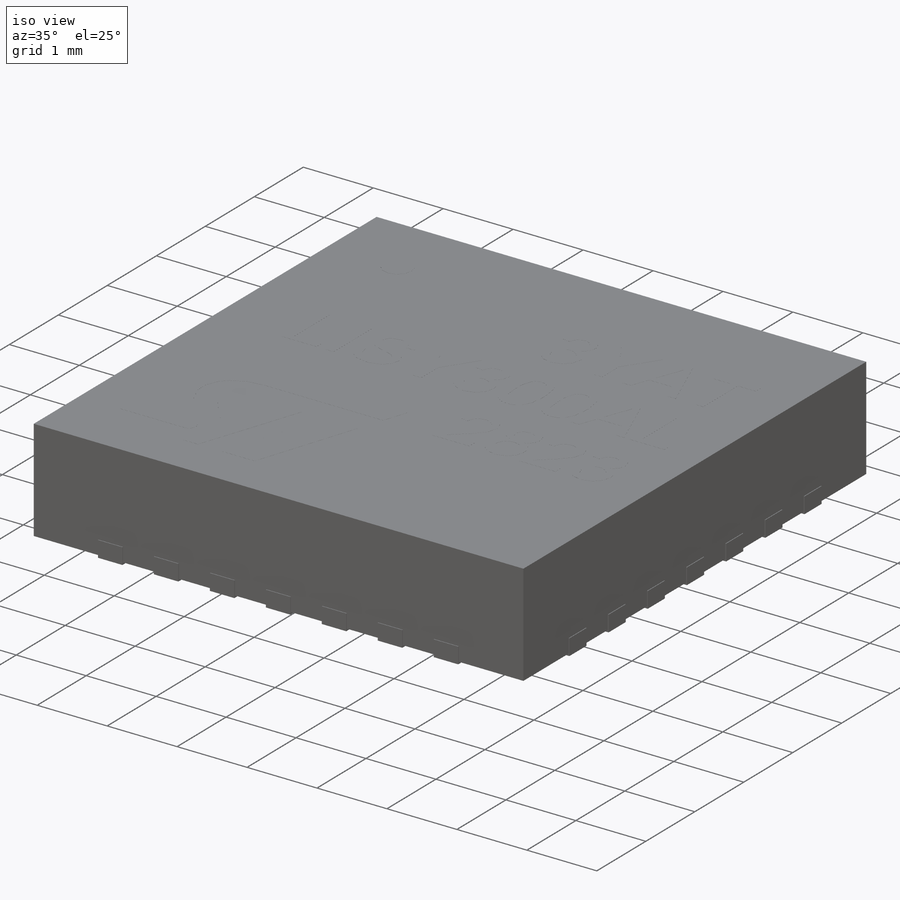
[diagram: iso view]
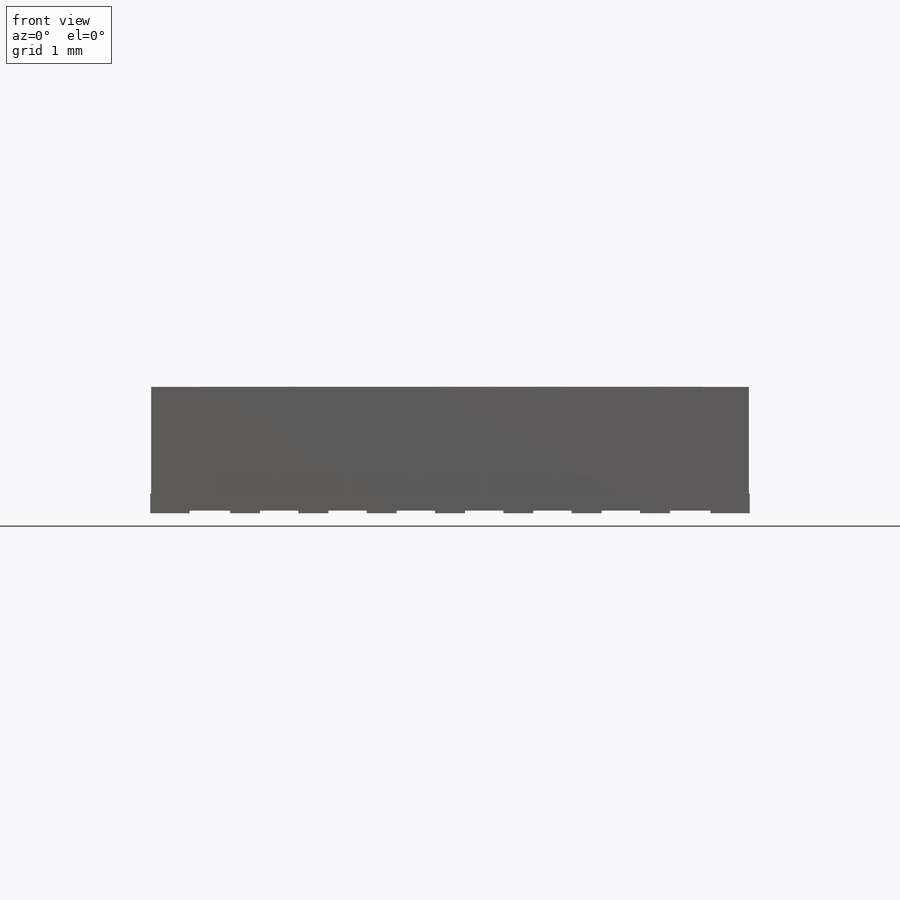
[diagram: front view]
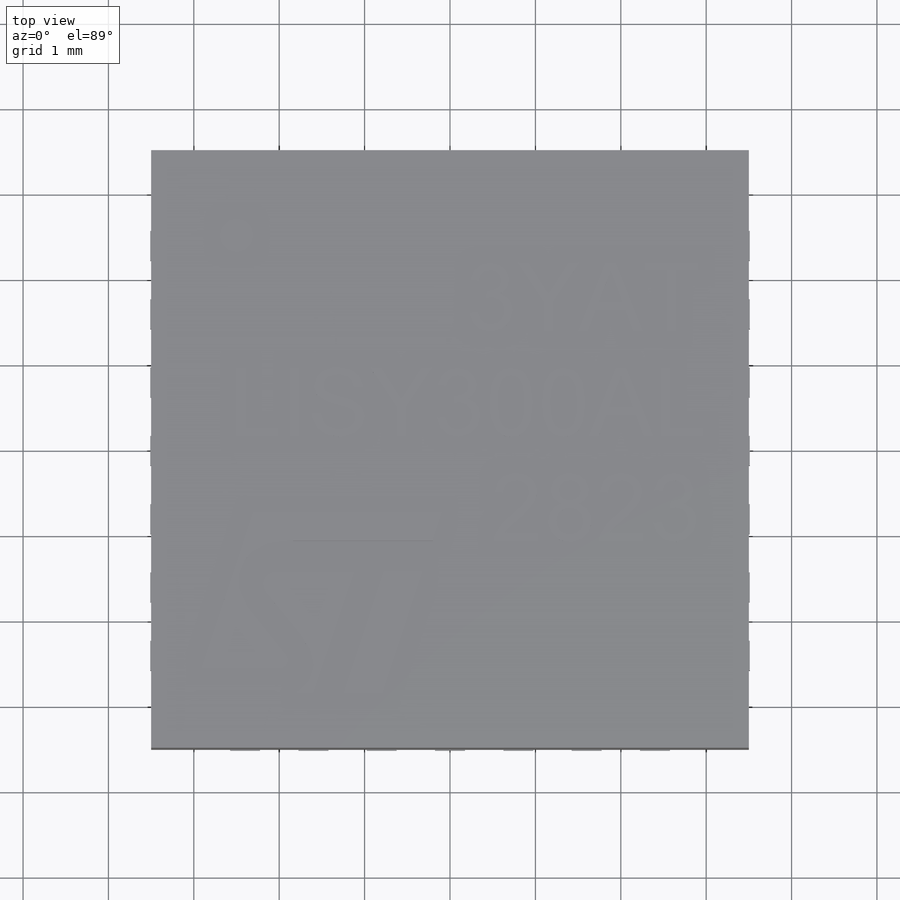
[diagram: top view]
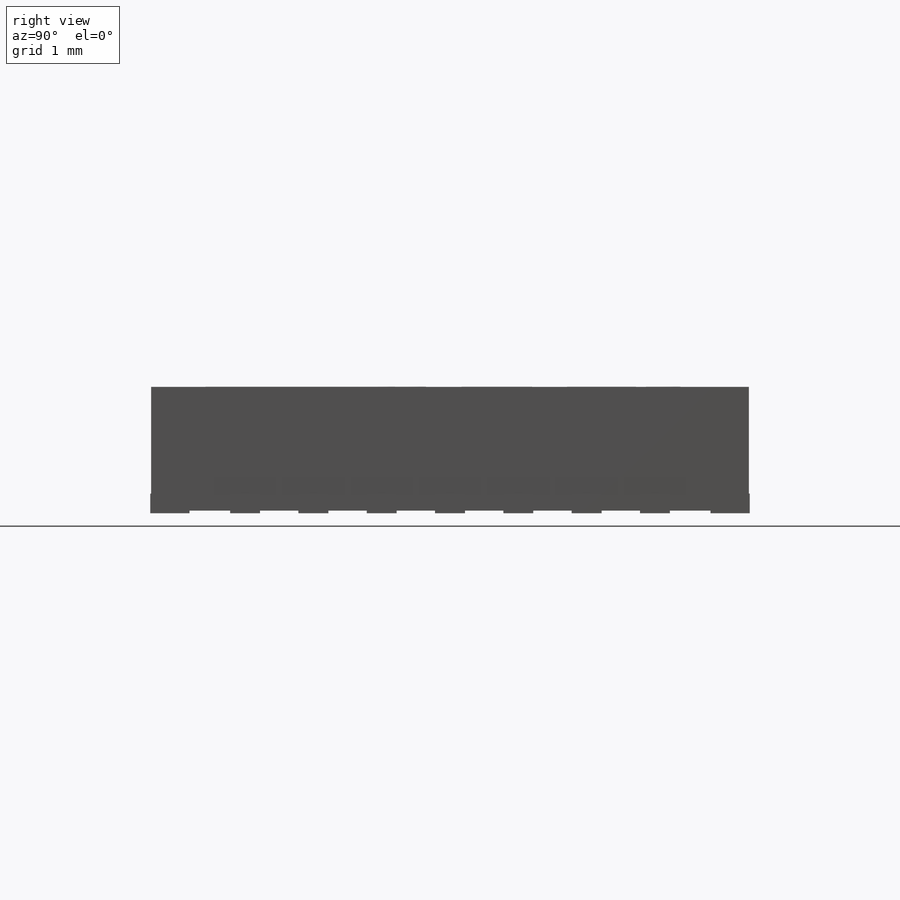
[diagram: right view]
SOLIDWORKS PART (.sldprt)
format: sldprt  version: not decoded by parser v0  size: 917,504 bytes
history: native  units: mm
features: plane x4, sketch x4, extrude x4, material x1 (+13 scaffold rows collapsed)
feature tree (26):
  scaffold x13  (default folders/planes/origin — collapsed)
  material  "ABS"
  plane  "Спереди"
  plane  "Сверху"
  plane  "Справа"
  plane  "Плоскость1"  Offset=0.03mm
  sketch  "Эскиз1"  dims[D1=7.0mm D2=3.5mm D3=3.5mm D4=7.0mm]
  extrude  "Вытянуть1"  Depth=1.45mm
  sketch  "Эскиз2"  dims[D1=0.1mm D2=0.15mm D3=0.1mm D4=0.15mm]
  extrude  "Вытянуть2"  Depth=0.001mm
  sketch  "Эскиз3"  dims[D1=1.0mm D2=1.0mm]
  extrude  "Вытянуть3"  Depth=0.001mm
  sketch  "Эскиз4"  dims[c1.D1=0.3mm c1.D2=0.5mm c1.D3=0.2mm c1.D4=2.01mm c2.D1=0.5mm c2.D2=0.3mm c2.D3=0.825mm c2.D4=1.51mm c2.D5=0.825mm c3.D1=0.35mm c3.D2=0.46mm c3.D3=3.51mm c3.D4=2.225mm c3.D5=2.225mm]
  extrude  "Вытянуть4"  Depth=0.03mm
decode coverage: 8 of 8 modeling features carry decoded parameters
note: suppression state not decoded; provenance and decode notes live in map.json
